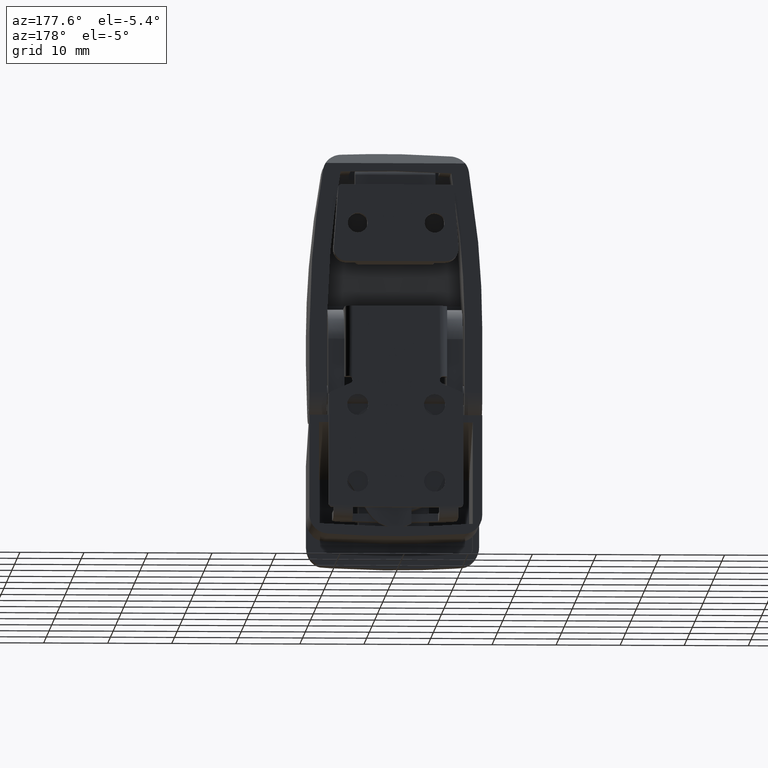
[diagram: clean part render]
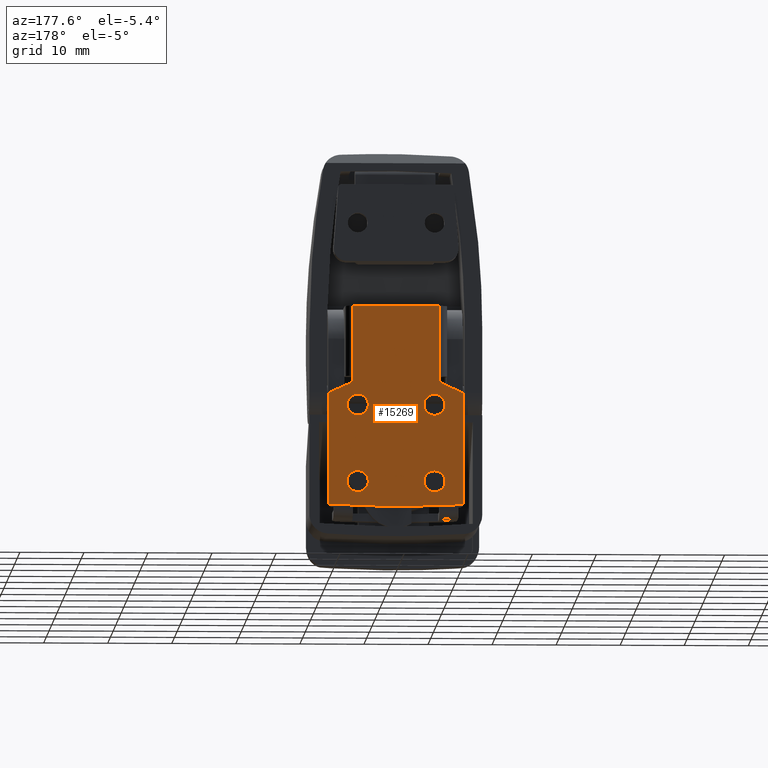
[diagram: same view with one face highlighted and labeled with its STEP entity id]
A machine part, auxiliary view. The second image highlights one B-rep face of the part: STEP entity #15269.
In plain terms, the highlighted face is a freeform B-spline surface patch.
Its self-contained STEP definition (entity closure, byte-faithful):
#12387=CARTESIAN_POINT('',(-4.336809E-018,4.353077460175357,-0.100728088503291));
#12388=VERTEX_POINT('',#12387);
#12394=CARTESIAN_POINT('',(0.0,6.0,-1.650000000000000));
#12395=VERTEX_POINT('',#12394);
#12396=CARTESIAN_POINT('',(0.0,6.0,-1.650000000000000));
#12397=CARTESIAN_POINT('',(0.0,4.447833099521642,-1.650000000000001));
#12398=CARTESIAN_POINT('',(-4.336809E-018,4.353077460175357,-0.100728088503291));
#12406=(BOUNDED_CURVE()B_SPLINE_CURVE(2,(#12396,#12397,#12398),.UNSPECIFIED.,.F.,.U.)B_SPLINE_CURVE_WITH_KNOTS((3,3),(0.500000000000000,0.739333171961626),.UNSPECIFIED.)CURVE()GEOMETRIC_REPRESENTATION_ITEM()RATIONAL_B_SPLINE_CURVE((1.0,0.719603747581303,0.976072491142762))REPRESENTATION_ITEM(''));
#12407=EDGE_CURVE('',#12395,#12388,#12406,.T.);
#12409=CARTESIAN_POINT('',(6.699443E-018,6.580169702481648,-1.544636888178692));
#12410=VERTEX_POINT('',#12409);
#12411=CARTESIAN_POINT('',(6.699443E-018,6.580169702481648,-1.544636888178692));
#12412=CARTESIAN_POINT('',(0.0,6.299652236373297,-1.650000000000000));
#12413=CARTESIAN_POINT('',(0.0,6.0,-1.650000000000000));
#12421=(BOUNDED_CURVE()B_SPLINE_CURVE(2,(#12411,#12412,#12413),.UNSPECIFIED.,.F.,.U.)B_SPLINE_CURVE_WITH_KNOTS((3,3),(0.440284161749865,0.500000000000000),.UNSPECIFIED.)CURVE()GEOMETRIC_REPRESENTATION_ITEM()RATIONAL_B_SPLINE_CURVE((0.893499543439507,0.930038543683097,1.0))REPRESENTATION_ITEM(''));
#12422=EDGE_CURVE('',#12410,#12395,#12421,.T.);
#12472=CARTESIAN_POINT('',(0.0,6.0,1.650000000000000));
#12473=VERTEX_POINT('',#12472);
#12474=CARTESIAN_POINT('',(0.0,6.0,1.650000000000000));
#12475=CARTESIAN_POINT('',(0.0,7.650000000000000,1.649999999999999));
#12476=CARTESIAN_POINT('',(0.0,7.650000000000000,0.0));
#12477=CARTESIAN_POINT('',(0.0,7.650000000000000,-1.142805762184889));
#12478=CARTESIAN_POINT('',(6.699443E-018,6.580169702481648,-1.544636888178693));
#12486=(BOUNDED_CURVE()B_SPLINE_CURVE(2,(#12474,#12475,#12476,#12477,#12478),.UNSPECIFIED.,.F.,.U.)B_SPLINE_CURVE_WITH_KNOTS((3,2,3),(0.0,0.250000000000000,0.440284161749865),.UNSPECIFIED.)CURVE()GEOMETRIC_REPRESENTATION_ITEM()RATIONAL_B_SPLINE_CURVE((1.0,0.707106781186548,1.0,0.777068237503450,0.893499543439507))REPRESENTATION_ITEM(''));
#12487=EDGE_CURVE('',#12473,#12410,#12486,.T.);
#12489=CARTESIAN_POINT('',(-4.336809E-018,4.353077460175357,-0.100728088503291));
#12490=CARTESIAN_POINT('',(0.0,4.350000000000000,-0.050411055771826));
#12491=CARTESIAN_POINT('',(0.0,4.350000000000000,0.0));
#12492=CARTESIAN_POINT('',(0.0,4.350000000000000,1.649999999999999));
#12493=CARTESIAN_POINT('',(0.0,6.0,1.650000000000000));
#12501=(BOUNDED_CURVE()B_SPLINE_CURVE(2,(#12489,#12490,#12491,#12492,#12493),.UNSPECIFIED.,.F.,.U.)B_SPLINE_CURVE_WITH_KNOTS((3,2,3),(0.739333171961626,0.750000000000000,1.0),.UNSPECIFIED.)CURVE()GEOMETRIC_REPRESENTATION_ITEM()RATIONAL_B_SPLINE_CURVE((0.976072491142762,0.987503033605244,1.0,0.707106781186548,1.0))REPRESENTATION_ITEM(''));
#12502=EDGE_CURVE('',#12388,#12473,#12501,.T.);
#12719=CARTESIAN_POINT('',(-4.336809E-018,-7.646922539824642,-0.100728088503291));
#12720=VERTEX_POINT('',#12719);
#12726=CARTESIAN_POINT('',(0.0,-6.0,-1.650000000000000));
#12727=VERTEX_POINT('',#12726);
#12728=CARTESIAN_POINT('',(0.0,-6.0,-1.650000000000000));
#12729=CARTESIAN_POINT('',(0.0,-7.552166900478357,-1.650000000000001));
#12730=CARTESIAN_POINT('',(-4.336809E-018,-7.646922539824642,-0.100728088503291));
#12738=(BOUNDED_CURVE()B_SPLINE_CURVE(2,(#12728,#12729,#12730),.UNSPECIFIED.,.F.,.U.)B_SPLINE_CURVE_WITH_KNOTS((3,3),(0.500000000000000,0.739333171961626),.UNSPECIFIED.)CURVE()GEOMETRIC_REPRESENTATION_ITEM()RATIONAL_B_SPLINE_CURVE((1.0,0.719603747581303,0.976072491142762))REPRESENTATION_ITEM(''));
#12739=EDGE_CURVE('',#12727,#12720,#12738,.T.);
#12741=CARTESIAN_POINT('',(6.699443E-018,-5.419830297518352,-1.544636888178692));
#12742=VERTEX_POINT('',#12741);
#12743=CARTESIAN_POINT('',(6.699443E-018,-5.419830297518352,-1.544636888178692));
#12744=CARTESIAN_POINT('',(0.0,-5.700347763626704,-1.650000000000000));
#12745=CARTESIAN_POINT('',(0.0,-6.0,-1.650000000000000));
#12753=(BOUNDED_CURVE()B_SPLINE_CURVE(2,(#12743,#12744,#12745),.UNSPECIFIED.,.F.,.U.)B_SPLINE_CURVE_WITH_KNOTS((3,3),(0.440284161749865,0.500000000000000),.UNSPECIFIED.)CURVE()GEOMETRIC_REPRESENTATION_ITEM()RATIONAL_B_SPLINE_CURVE((0.893499543439507,0.930038543683097,1.0))REPRESENTATION_ITEM(''));
#12754=EDGE_CURVE('',#12742,#12727,#12753,.T.);
#12804=CARTESIAN_POINT('',(0.0,-6.0,1.650000000000000));
#12805=VERTEX_POINT('',#12804);
#12806=CARTESIAN_POINT('',(0.0,-6.0,1.650000000000000));
#12807=CARTESIAN_POINT('',(0.0,-4.350000000000000,1.649999999999999));
#12808=CARTESIAN_POINT('',(0.0,-4.350000000000000,0.0));
#12809=CARTESIAN_POINT('',(0.0,-4.350000000000000,-1.142805762184889));
#12810=CARTESIAN_POINT('',(6.699443E-018,-5.419830297518352,-1.544636888178693));
#12818=(BOUNDED_CURVE()B_SPLINE_CURVE(2,(#12806,#12807,#12808,#12809,#12810),.UNSPECIFIED.,.F.,.U.)B_SPLINE_CURVE_WITH_KNOTS((3,2,3),(0.0,0.250000000000000,0.440284161749865),.UNSPECIFIED.)CURVE()GEOMETRIC_REPRESENTATION_ITEM()RATIONAL_B_SPLINE_CURVE((1.0,0.707106781186548,1.0,0.777068237503450,0.893499543439507))REPRESENTATION_ITEM(''));
#12819=EDGE_CURVE('',#12805,#12742,#12818,.T.);
#12821=CARTESIAN_POINT('',(-4.336809E-018,-7.646922539824642,-0.100728088503291));
#12822=CARTESIAN_POINT('',(0.0,-7.650000000000000,-0.050411055771826));
#12823=CARTESIAN_POINT('',(0.0,-7.650000000000000,0.0));
#12824=CARTESIAN_POINT('',(0.0,-7.650000000000000,1.649999999999999));
#12825=CARTESIAN_POINT('',(0.0,-6.0,1.650000000000000));
#12833=(BOUNDED_CURVE()B_SPLINE_CURVE(2,(#12821,#12822,#12823,#12824,#12825),.UNSPECIFIED.,.F.,.U.)B_SPLINE_CURVE_WITH_KNOTS((3,2,3),(0.739333171961626,0.750000000000000,1.0),.UNSPECIFIED.)CURVE()GEOMETRIC_REPRESENTATION_ITEM()RATIONAL_B_SPLINE_CURVE((0.976072491142762,0.987503033605244,1.0,0.707106781186548,1.0))REPRESENTATION_ITEM(''));
#12834=EDGE_CURVE('',#12720,#12805,#12833,.T.);
#13051=CARTESIAN_POINT('',(-4.336809E-018,4.353077460175357,-12.100728088503290));
#13052=VERTEX_POINT('',#13051);
#13058=CARTESIAN_POINT('',(0.0,6.0,-13.650000000000000));
#13059=VERTEX_POINT('',#13058);
#13060=CARTESIAN_POINT('',(0.0,6.0,-13.650000000000000));
#13061=CARTESIAN_POINT('',(0.0,4.447833099521638,-13.650000000000004));
#13062=CARTESIAN_POINT('',(-4.336809E-018,4.353077460175357,-12.100728088503288));
#13070=(BOUNDED_CURVE()B_SPLINE_CURVE(2,(#13060,#13061,#13062),.UNSPECIFIED.,.F.,.U.)B_SPLINE_CURVE_WITH_KNOTS((3,3),(0.500000000000000,0.739333171961626),.UNSPECIFIED.)CURVE()GEOMETRIC_REPRESENTATION_ITEM()RATIONAL_B_SPLINE_CURVE((1.0,0.719603747581303,0.976072491142763))REPRESENTATION_ITEM(''));
#13071=EDGE_CURVE('',#13059,#13052,#13070,.T.);
#13073=CARTESIAN_POINT('',(6.699443E-018,6.580169702481648,-13.544636888178690));
#13074=VERTEX_POINT('',#13073);
#13075=CARTESIAN_POINT('',(6.699443E-018,6.580169702481649,-13.544636888178699));
#13076=CARTESIAN_POINT('',(0.0,6.299652236373296,-13.649999999999999));
#13077=CARTESIAN_POINT('',(0.0,6.0,-13.650000000000000));
#13085=(BOUNDED_CURVE()B_SPLINE_CURVE(2,(#13075,#13076,#13077),.UNSPECIFIED.,.F.,.U.)B_SPLINE_CURVE_WITH_KNOTS((3,3),(0.440284161749865,0.500000000000000),.UNSPECIFIED.)CURVE()GEOMETRIC_REPRESENTATION_ITEM()RATIONAL_B_SPLINE_CURVE((0.893499543439508,0.930038543683098,1.0))REPRESENTATION_ITEM(''));
#13086=EDGE_CURVE('',#13074,#13059,#13085,.T.);
#13136=CARTESIAN_POINT('',(0.0,6.0,-10.350000000000000));
#13137=VERTEX_POINT('',#13136);
#13138=CARTESIAN_POINT('',(0.0,6.0,-10.350000000000000));
#13139=CARTESIAN_POINT('',(0.0,7.650000000000000,-10.350000000000001));
#13140=CARTESIAN_POINT('',(0.0,7.650000000000000,-12.0));
#13141=CARTESIAN_POINT('',(0.0,7.650000000000000,-13.142805762184887));
#13142=CARTESIAN_POINT('',(6.699443E-018,6.580169702481648,-13.544636888178692));
#13150=(BOUNDED_CURVE()B_SPLINE_CURVE(2,(#13138,#13139,#13140,#13141,#13142),.UNSPECIFIED.,.F.,.U.)B_SPLINE_CURVE_WITH_KNOTS((3,2,3),(0.0,0.250000000000000,0.440284161749865),.UNSPECIFIED.)CURVE()GEOMETRIC_REPRESENTATION_ITEM()RATIONAL_B_SPLINE_CURVE((1.0,0.707106781186548,1.0,0.777068237503450,0.893499543439507))REPRESENTATION_ITEM(''));
#13151=EDGE_CURVE('',#13137,#13074,#13150,.T.);
#13153=CARTESIAN_POINT('',(-4.336809E-018,4.353077460175357,-12.100728088503288));
#13154=CARTESIAN_POINT('',(0.0,4.349999999999999,-12.050411055771828));
#13155=CARTESIAN_POINT('',(0.0,4.350000000000000,-12.0));
#13156=CARTESIAN_POINT('',(0.0,4.350000000000000,-10.350000000000001));
#13157=CARTESIAN_POINT('',(0.0,6.0,-10.350000000000000));
#13165=(BOUNDED_CURVE()B_SPLINE_CURVE(2,(#13153,#13154,#13155,#13156,#13157),.UNSPECIFIED.,.F.,.U.)B_SPLINE_CURVE_WITH_KNOTS((3,2,3),(0.739333171961626,0.750000000000000,1.0),.UNSPECIFIED.)CURVE()GEOMETRIC_REPRESENTATION_ITEM()RATIONAL_B_SPLINE_CURVE((0.976072491142763,0.987503033605245,1.0,0.707106781186548,1.0))REPRESENTATION_ITEM(''));
#13166=EDGE_CURVE('',#13052,#13137,#13165,.T.);
#13383=CARTESIAN_POINT('',(-4.336809E-018,-7.646922539824643,-12.100728088503290));
#13384=VERTEX_POINT('',#13383);
#13390=CARTESIAN_POINT('',(0.0,-6.0,-13.650000000000000));
#13391=VERTEX_POINT('',#13390);
#13392=CARTESIAN_POINT('',(0.0,-6.0,-13.650000000000000));
#13393=CARTESIAN_POINT('',(0.0,-7.552166900478361,-13.650000000000004));
#13394=CARTESIAN_POINT('',(-4.336809E-018,-7.646922539824643,-12.100728088503288));
#13402=(BOUNDED_CURVE()B_SPLINE_CURVE(2,(#13392,#13393,#13394),.UNSPECIFIED.,.F.,.U.)B_SPLINE_CURVE_WITH_KNOTS((3,3),(0.500000000000000,0.739333171961626),.UNSPECIFIED.)CURVE()GEOMETRIC_REPRESENTATION_ITEM()RATIONAL_B_SPLINE_CURVE((1.0,0.719603747581303,0.976072491142763))REPRESENTATION_ITEM(''));
#13403=EDGE_CURVE('',#13391,#13384,#13402,.T.);
#13405=CARTESIAN_POINT('',(6.699443E-018,-5.419830297518352,-13.544636888178690));
#13406=VERTEX_POINT('',#13405);
#13407=CARTESIAN_POINT('',(6.699443E-018,-5.419830297518354,-13.544636888178699));
#13408=CARTESIAN_POINT('',(0.0,-5.700347763626703,-13.649999999999999));
#13409=CARTESIAN_POINT('',(0.0,-6.0,-13.650000000000000));
#13417=(BOUNDED_CURVE()B_SPLINE_CURVE(2,(#13407,#13408,#13409),.UNSPECIFIED.,.F.,.U.)B_SPLINE_CURVE_WITH_KNOTS((3,3),(0.440284161749865,0.500000000000000),.UNSPECIFIED.)CURVE()GEOMETRIC_REPRESENTATION_ITEM()RATIONAL_B_SPLINE_CURVE((0.893499543439508,0.930038543683098,1.0))REPRESENTATION_ITEM(''));
#13418=EDGE_CURVE('',#13406,#13391,#13417,.T.);
#13468=CARTESIAN_POINT('',(0.0,-6.0,-10.350000000000000));
#13469=VERTEX_POINT('',#13468);
#13470=CARTESIAN_POINT('',(0.0,-6.0,-10.350000000000000));
#13471=CARTESIAN_POINT('',(0.0,-4.350000000000000,-10.350000000000001));
#13472=CARTESIAN_POINT('',(0.0,-4.350000000000000,-12.0));
#13473=CARTESIAN_POINT('',(0.0,-4.350000000000000,-13.142805762184887));
#13474=CARTESIAN_POINT('',(6.699443E-018,-5.419830297518352,-13.544636888178692));
#13482=(BOUNDED_CURVE()B_SPLINE_CURVE(2,(#13470,#13471,#13472,#13473,#13474),.UNSPECIFIED.,.F.,.U.)B_SPLINE_CURVE_WITH_KNOTS((3,2,3),(0.0,0.250000000000000,0.440284161749865),.UNSPECIFIED.)CURVE()GEOMETRIC_REPRESENTATION_ITEM()RATIONAL_B_SPLINE_CURVE((1.0,0.707106781186548,1.0,0.777068237503450,0.893499543439507))REPRESENTATION_ITEM(''));
#13483=EDGE_CURVE('',#13469,#13406,#13482,.T.);
#13485=CARTESIAN_POINT('',(-4.336809E-018,-7.646922539824643,-12.100728088503288));
#13486=CARTESIAN_POINT('',(0.0,-7.650000000000000,-12.050411055771828));
#13487=CARTESIAN_POINT('',(0.0,-7.650000000000000,-12.0));
#13488=CARTESIAN_POINT('',(0.0,-7.650000000000000,-10.350000000000001));
#13489=CARTESIAN_POINT('',(0.0,-6.0,-10.350000000000000));
#13497=(BOUNDED_CURVE()B_SPLINE_CURVE(2,(#13485,#13486,#13487,#13488,#13489),.UNSPECIFIED.,.F.,.U.)B_SPLINE_CURVE_WITH_KNOTS((3,2,3),(0.739333171961626,0.750000000000000,1.0),.UNSPECIFIED.)CURVE()GEOMETRIC_REPRESENTATION_ITEM()RATIONAL_B_SPLINE_CURVE((0.976072491142763,0.987503033605245,1.0,0.707106781186548,1.0))REPRESENTATION_ITEM(''));
#13498=EDGE_CURVE('',#13384,#13469,#13497,.T.);
#14229=CARTESIAN_POINT('',(0.0,-6.800000000000000,3.900000000000000));
#14230=VERTEX_POINT('',#14229);
#14258=CARTESIAN_POINT('',(0.0,-6.800000000000000,15.500000000000000));
#14259=VERTEX_POINT('',#14258);
#14260=CARTESIAN_POINT('',(0.0,-6.800000000000000,15.500000000000000));
#14261=CARTESIAN_POINT('',(0.0,-6.800000000000000,3.900000000000000));
#14262=QUASI_UNIFORM_CURVE('',1,(#14260,#14261),.UNSPECIFIED.,.F.,.U.);
#14263=EDGE_CURVE('',#14259,#14230,#14262,.T.);
#14317=CARTESIAN_POINT('',(0.0,6.800000000000000,15.500000000000000));
#14318=VERTEX_POINT('',#14317);
#14334=CARTESIAN_POINT('',(0.0,6.800000000000000,3.900000000000000));
#14335=VERTEX_POINT('',#14334);
#14336=CARTESIAN_POINT('',(0.0,6.800000000000000,3.900000000000000));
#14337=CARTESIAN_POINT('',(0.0,6.800000000000000,15.500000000000000));
#14338=QUASI_UNIFORM_CURVE('',1,(#14336,#14337),.UNSPECIFIED.,.F.,.U.);
#14339=EDGE_CURVE('',#14335,#14318,#14338,.T.);
#14488=CARTESIAN_POINT('',(0.0,1.136868E-013,-16.0));
#14489=VERTEX_POINT('',#14488);
#14499=CARTESIAN_POINT('',(0.0,-10.484286706775199,-15.624363924193601));
#14500=VERTEX_POINT('',#14499);
#14501=CARTESIAN_POINT('',(0.0,-10.484286706775199,-15.624363924193601));
#14502=CARTESIAN_POINT('',(0.0,-5.248872588546697,-15.999999999999991));
#14503=CARTESIAN_POINT('',(0.0,1.136868E-013,-15.999999999999989));
#14511=(BOUNDED_CURVE()B_SPLINE_CURVE(2,(#14501,#14502,#14503),.UNSPECIFIED.,.F.,.U.)CURVE()GEOMETRIC_REPRESENTATION_ITEM()QUASI_UNIFORM_CURVE()RATIONAL_B_SPLINE_CURVE((1.0,0.999358777222466,1.0))REPRESENTATION_ITEM(''));
#14512=EDGE_CURVE('',#14500,#14489,#14511,.T.);
#14646=CARTESIAN_POINT('',(0.0,10.484286706775100,-15.624363924193601));
#14647=VERTEX_POINT('',#14646);
#14663=CARTESIAN_POINT('',(0.0,1.136868E-013,-15.999999999999989));
#14664=CARTESIAN_POINT('',(0.0,5.248872588546386,-15.999999999999989));
#14665=CARTESIAN_POINT('',(0.0,10.484286706775100,-15.624363924193601));
#14673=(BOUNDED_CURVE()B_SPLINE_CURVE(2,(#14663,#14664,#14665),.UNSPECIFIED.,.F.,.U.)CURVE()GEOMETRIC_REPRESENTATION_ITEM()QUASI_UNIFORM_CURVE()RATIONAL_B_SPLINE_CURVE((1.0,0.999358777222466,1.0))REPRESENTATION_ITEM(''));
#14674=EDGE_CURVE('',#14489,#14647,#14673,.T.);
#15115=CARTESIAN_POINT('',(0.0,-11.548949959297930,17.073424938946889));
#15116=CARTESIAN_POINT('',(0.0,11.548950522561819,17.073424938946889));
#15117=CARTESIAN_POINT('',(0.0,-11.548949959297930,-17.573425783842730));
#15118=CARTESIAN_POINT('',(0.0,11.548950522561819,-17.573425783842730));
#15119=B_SPLINE_SURFACE_WITH_KNOTS('',1,1,((#15115,#15117),(#15116,#15118)),.UNSPECIFIED.,.F.,.F.,.U.,(2,2),(2,2),(0.0,23.097900481859750),(0.0,34.646850722789608),.UNSPECIFIED.);
#15120=CARTESIAN_POINT('',(0.0,7.156705772482350,3.351540412740755));
#15121=VERTEX_POINT('',#15120);
#15122=CARTESIAN_POINT('',(0.0,6.800000000000001,3.900000000000000));
#15123=CARTESIAN_POINT('',(0.0,6.800000000000001,3.509773502986938));
#15124=CARTESIAN_POINT('',(0.0,7.156705772482347,3.351540412740749));
#15132=(BOUNDED_CURVE()B_SPLINE_CURVE(2,(#15122,#15123,#15124),.UNSPECIFIED.,.F.,.U.)CURVE()GEOMETRIC_REPRESENTATION_ITEM()QUASI_UNIFORM_CURVE()RATIONAL_B_SPLINE_CURVE((1.0,0.838298985802825,1.0))REPRESENTATION_ITEM(''));
#15133=EDGE_CURVE('',#14335,#15121,#15132,.T.);
#15134=ORIENTED_EDGE('',*,*,#15133,.F.);
#15135=ORIENTED_EDGE('',*,*,#14339,.T.);
#15136=CARTESIAN_POINT('',(0.0,-6.800000000000000,15.500000000000000));
#15137=CARTESIAN_POINT('',(0.0,6.800000000000000,15.500000000000000));
#15138=QUASI_UNIFORM_CURVE('',1,(#15136,#15137),.UNSPECIFIED.,.F.,.U.);
#15139=EDGE_CURVE('',#14259,#14318,#15138,.T.);
#15140=ORIENTED_EDGE('',*,*,#15139,.F.);
#15141=ORIENTED_EDGE('',*,*,#14263,.T.);
#15142=CARTESIAN_POINT('',(0.0,-7.156705772482379,3.351540412740805));
#15143=VERTEX_POINT('',#15142);
#15144=CARTESIAN_POINT('',(0.0,-7.156705772482379,3.351540412740805));
#15145=CARTESIAN_POINT('',(0.0,-6.800000000000001,3.509773502986933));
#15146=CARTESIAN_POINT('',(0.0,-6.800000000000001,3.900000000000000));
#15154=(BOUNDED_CURVE()B_SPLINE_CURVE(2,(#15144,#15145,#15146),.UNSPECIFIED.,.F.,.U.)CURVE()GEOMETRIC_REPRESENTATION_ITEM()QUASI_UNIFORM_CURVE()RATIONAL_B_SPLINE_CURVE((1.0,0.838298985802822,1.0))REPRESENTATION_ITEM(''));
#15155=EDGE_CURVE('',#15143,#14230,#15154,.T.);
#15156=ORIENTED_EDGE('',*,*,#15155,.F.);
#15157=CARTESIAN_POINT('',(0.0,-10.202745189598060,2.000330908538495));
#15158=VERTEX_POINT('',#15157);
#15159=CARTESIAN_POINT('',(0.0,-10.202745189598060,2.000330908538495));
#15160=CARTESIAN_POINT('',(0.0,-7.156705772482379,3.351540412740805));
#15161=QUASI_UNIFORM_CURVE('',1,(#15159,#15160),.UNSPECIFIED.,.F.,.U.);
#15162=EDGE_CURVE('',#15158,#15143,#15161,.T.);
#15163=ORIENTED_EDGE('',*,*,#15162,.F.);
#15164=CARTESIAN_POINT('',(0.0,-10.500000000000000,1.543281252489125));
#15165=VERTEX_POINT('',#15164);
#15166=CARTESIAN_POINT('',(0.0,-10.202745189598060,2.000330908538494));
#15167=CARTESIAN_POINT('',(0.0,-10.500000000000002,1.868469999999999));
#15168=CARTESIAN_POINT('',(0.0,-10.500000000000000,1.543281252489125));
#15176=(BOUNDED_CURVE()B_SPLINE_CURVE(2,(#15166,#15167,#15168),.UNSPECIFIED.,.F.,.U.)CURVE()GEOMETRIC_REPRESENTATION_ITEM()QUASI_UNIFORM_CURVE()RATIONAL_B_SPLINE_CURVE((1.0,0.838298985802834,1.0))REPRESENTATION_ITEM(''));
#15177=EDGE_CURVE('',#15158,#15165,#15176,.T.);
#15178=ORIENTED_EDGE('',*,*,#15177,.T.);
#15179=CARTESIAN_POINT('',(0.0,-10.500000000000000,-15.500000000000000));
#15180=VERTEX_POINT('',#15179);
#15181=CARTESIAN_POINT('',(0.0,-10.500000000000000,-15.500000000000000));
#15182=CARTESIAN_POINT('',(0.0,-10.500000000000000,1.543281252489125));
#15183=QUASI_UNIFORM_CURVE('',1,(#15181,#15182),.UNSPECIFIED.,.F.,.U.);
#15184=EDGE_CURVE('',#15180,#15165,#15183,.T.);
#15185=ORIENTED_EDGE('',*,*,#15184,.F.);
#15186=CARTESIAN_POINT('',(0.0,-10.500000000000000,-15.500000000000000));
#15187=CARTESIAN_POINT('',(0.0,-10.500000000000000,-15.563174643799194));
#15188=CARTESIAN_POINT('',(0.0,-10.484286706775199,-15.624363924193601));
#15196=(BOUNDED_CURVE()B_SPLINE_CURVE(2,(#15186,#15187,#15188),.UNSPECIFIED.,.F.,.U.)CURVE()GEOMETRIC_REPRESENTATION_ITEM()QUASI_UNIFORM_CURVE()RATIONAL_B_SPLINE_CURVE((1.0,0.992112245048512,1.0))REPRESENTATION_ITEM(''));
#15197=EDGE_CURVE('',#15180,#14500,#15196,.T.);
#15198=ORIENTED_EDGE('',*,*,#15197,.T.);
#15199=ORIENTED_EDGE('',*,*,#14512,.T.);
#15200=ORIENTED_EDGE('',*,*,#14674,.T.);
#15201=CARTESIAN_POINT('',(0.0,10.500000000000000,-15.500000000000000));
#15202=VERTEX_POINT('',#15201);
#15203=CARTESIAN_POINT('',(0.0,10.484286706775100,-15.624363924193601));
#15204=CARTESIAN_POINT('',(0.0,10.500000000000002,-15.563174643799201));
#15205=CARTESIAN_POINT('',(0.0,10.500000000000000,-15.500000000000000));
#15213=(BOUNDED_CURVE()B_SPLINE_CURVE(2,(#15203,#15204,#15205),.UNSPECIFIED.,.F.,.U.)CURVE()GEOMETRIC_REPRESENTATION_ITEM()QUASI_UNIFORM_CURVE()RATIONAL_B_SPLINE_CURVE((1.0,0.992112245048509,1.0))REPRESENTATION_ITEM(''));
#15214=EDGE_CURVE('',#14647,#15202,#15213,.T.);
#15215=ORIENTED_EDGE('',*,*,#15214,.T.);
#15216=CARTESIAN_POINT('',(0.0,10.500000000000000,1.543281252489120));
#15217=VERTEX_POINT('',#15216);
#15218=CARTESIAN_POINT('',(0.0,10.500000000000000,1.543281252489120));
#15219=CARTESIAN_POINT('',(0.0,10.500000000000000,-15.500000000000000));
#15220=QUASI_UNIFORM_CURVE('',1,(#15218,#15219),.UNSPECIFIED.,.F.,.U.);
#15221=EDGE_CURVE('',#15217,#15202,#15220,.T.);
#15222=ORIENTED_EDGE('',*,*,#15221,.F.);
#15223=CARTESIAN_POINT('',(0.0,10.202745189598120,2.000330908538500));
#15224=VERTEX_POINT('',#15223);
#15225=CARTESIAN_POINT('',(0.0,10.500000000000000,1.543281252489125));
#15226=CARTESIAN_POINT('',(0.0,10.500000000000002,1.868469999999962));
#15227=CARTESIAN_POINT('',(0.0,10.202745189598120,2.000330908538500));
#15235=(BOUNDED_CURVE()B_SPLINE_CURVE(2,(#15225,#15226,#15227),.UNSPECIFIED.,.F.,.U.)CURVE()GEOMETRIC_REPRESENTATION_ITEM()QUASI_UNIFORM_CURVE()RATIONAL_B_SPLINE_CURVE((1.0,0.838298985802862,1.0))REPRESENTATION_ITEM(''));
#15236=EDGE_CURVE('',#15217,#15224,#15235,.T.);
#15237=ORIENTED_EDGE('',*,*,#15236,.T.);
#15238=CARTESIAN_POINT('',(0.0,7.156705772482350,3.351540412740755));
#15239=CARTESIAN_POINT('',(0.0,10.202745189598120,2.000330908538500));
#15240=QUASI_UNIFORM_CURVE('',1,(#15238,#15239),.UNSPECIFIED.,.F.,.U.);
#15241=EDGE_CURVE('',#15121,#15224,#15240,.T.);
#15242=ORIENTED_EDGE('',*,*,#15241,.F.);
#15243=EDGE_LOOP('',(#15134,#15135,#15140,#15141,#15156,#15163,#15178,#15185,#15198,#15199,#15200,#15215,#15222,#15237,#15242));
#15244=FACE_OUTER_BOUND('',#15243,.T.);
#15245=ORIENTED_EDGE('',*,*,#13403,.T.);
#15246=ORIENTED_EDGE('',*,*,#13498,.T.);
#15247=ORIENTED_EDGE('',*,*,#13483,.T.);
#15248=ORIENTED_EDGE('',*,*,#13418,.T.);
#15249=EDGE_LOOP('',(#15245,#15246,#15247,#15248));
#15250=FACE_BOUND('',#15249,.T.);
#15251=ORIENTED_EDGE('',*,*,#13071,.T.);
#15252=ORIENTED_EDGE('',*,*,#13166,.T.);
#15253=ORIENTED_EDGE('',*,*,#13151,.T.);
#15254=ORIENTED_EDGE('',*,*,#13086,.T.);
#15255=EDGE_LOOP('',(#15251,#15252,#15253,#15254));
#15256=FACE_BOUND('',#15255,.T.);
#15257=ORIENTED_EDGE('',*,*,#12739,.T.);
#15258=ORIENTED_EDGE('',*,*,#12834,.T.);
#15259=ORIENTED_EDGE('',*,*,#12819,.T.);
#15260=ORIENTED_EDGE('',*,*,#12754,.T.);
#15261=EDGE_LOOP('',(#15257,#15258,#15259,#15260));
#15262=FACE_BOUND('',#15261,.T.);
#15263=ORIENTED_EDGE('',*,*,#12407,.T.);
#15264=ORIENTED_EDGE('',*,*,#12502,.T.);
#15265=ORIENTED_EDGE('',*,*,#12487,.T.);
#15266=ORIENTED_EDGE('',*,*,#12422,.T.);
#15267=EDGE_LOOP('',(#15263,#15264,#15265,#15266));
#15268=FACE_BOUND('',#15267,.T.);
#15269=ADVANCED_FACE('',(#15244,#15250,#15256,#15262,#15268),#15119,.F.);